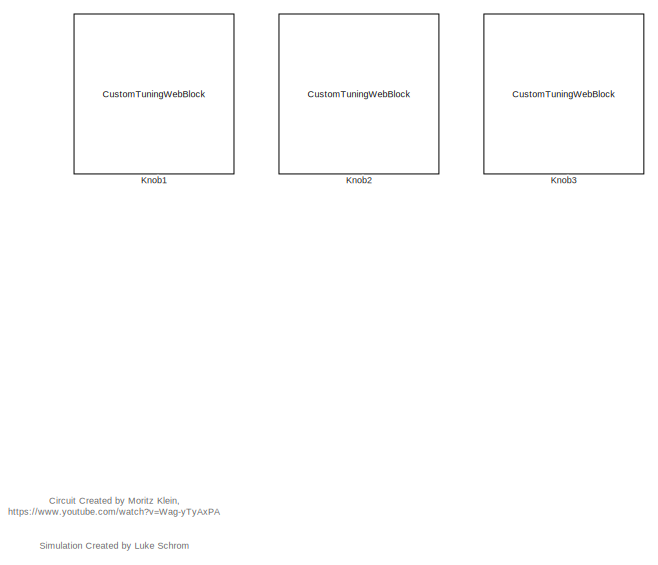
[diagram: root canvas - part 1/2, middle right region]
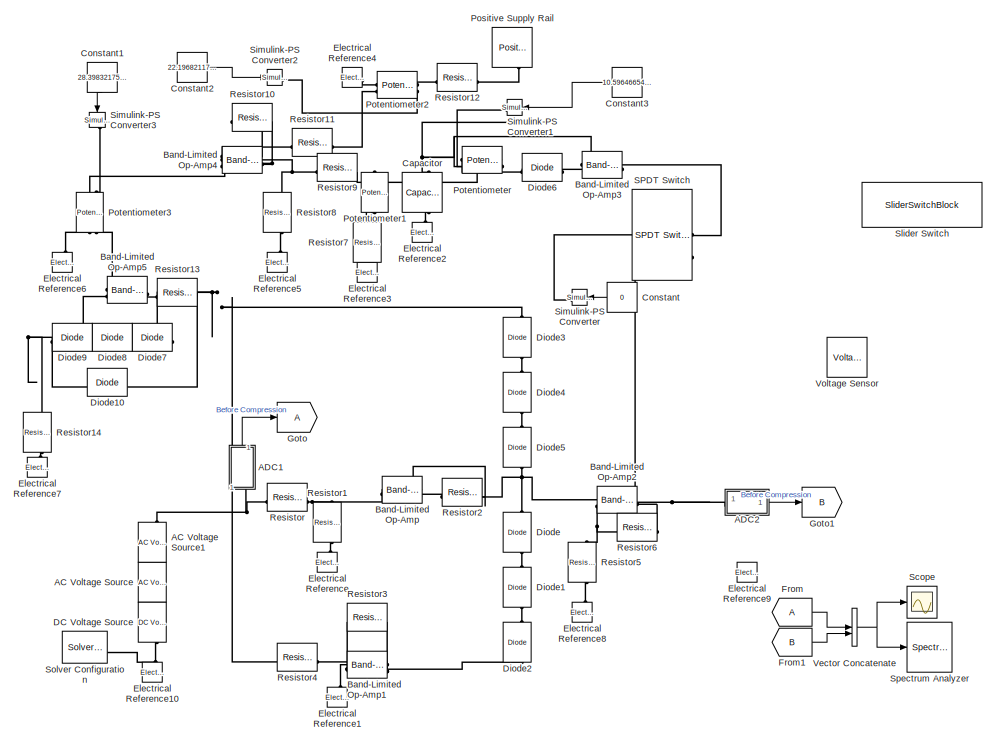
[diagram: root canvas - part 2/2, left side, full height]
MODEL slx_2bfb2316a08a
KIND model
CONFIG AbsTol = auto
CONFIG EnableMultiTasking = off
CONFIG FixedStep = auto
CONFIG MaxStep = auto
CONFIG MinStep = auto
CONFIG RelTol = 1e-3
CONFIG SampleTimeConstraint = Unconstrained
CONFIG SolverName = VariableStepAuto
CONFIG StartTime = 0.0
CONFIG StopTime = 10.0
BLOCK [Reference] AC Voltage Source  REF=fl_lib/Electrical/Electrical Sources/AC Voltage Source
  NameLocation = right
  SourceBlock = fl_lib/Electrical/Electrical Sources/AC Voltage Source
  SourceType = AC Voltage Source
BLOCK [Reference] AC Voltage Source1  REF=fl_lib/Electrical/Electrical Sources/AC Voltage Source
  NameLocation = right
  SourceBlock = fl_lib/Electrical/Electrical Sources/AC Voltage Source
  SourceType = AC Voltage Source
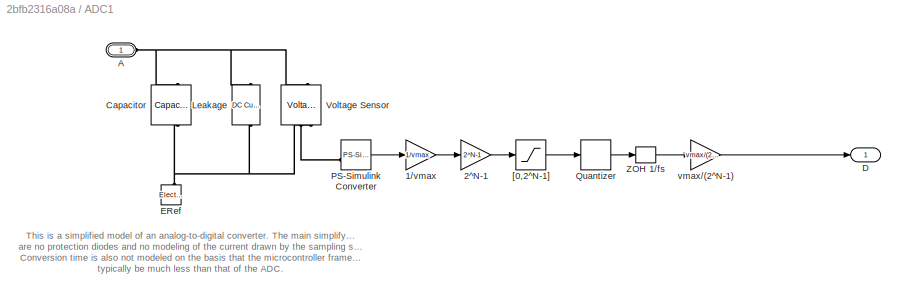
BLOCK [SubSystem] ADC1
  NameLocation = left
BLOCK [Gain] ADC1/1//vmax
  Gain = 1/vmax
BLOCK [Gain] ADC1/2^N-1
  Gain = 2^N-1
BLOCK [PMIOPort] ADC1/A
  Side = Left
BLOCK [Reference] ADC1/Capacitor  REF=fl_lib/Electrical/Electrical Elements/Capacitor
  NameLocation = left
  SourceBlock = fl_lib/Electrical/Electrical Elements/Capacitor
  SourceType = Capacitor
BLOCK [Outport] ADC1/D
  VectorParamsAs1DForOutWhenUnconnected = off
BLOCK [Reference] ADC1/ERef  REF=fl_lib/Electrical/Electrical Elements/Electrical Reference
  NameLocation = right
  SourceBlock = fl_lib/Electrical/Electrical Elements/Electrical Reference
  SourceType = Electrical Reference
BLOCK [Reference] ADC1/Leakage  REF=fl_lib/Electrical/Electrical Sources/DC Current Source
  NameLocation = left
  SourceBlock = fl_lib/Electrical/Electrical Sources/DC Current Source
  SourceType = DC Current Source
BLOCK [Reference] ADC1/PS-Simulink Converter  REF=nesl_utility/PS-Simulink
Converter
  SourceBlock = nesl_utility/PS-Simulink\nConverter
  SourceType = PS-Simulink\nConverter
BLOCK [Quantizer] ADC1/Quantizer
BLOCK [Reference] ADC1/Voltage Sensor  REF=fl_lib/Electrical/Electrical Sensors/Voltage Sensor
  NameLocation = right
  SourceBlock = fl_lib/Electrical/Electrical Sensors/Voltage Sensor
  SourceType = Voltage Sensor
BLOCK [ZeroOrderHold] ADC1/ZOH 1//fs
  SampleTime = 1/fs
BLOCK [Saturate] ADC1/[0,2^N-1]
  LowerLimit = 0
  UpperLimit = 2^N-1
BLOCK [Gain] ADC1/vmax//(2^N-1)
  Gain = vmax/(2^N-1)
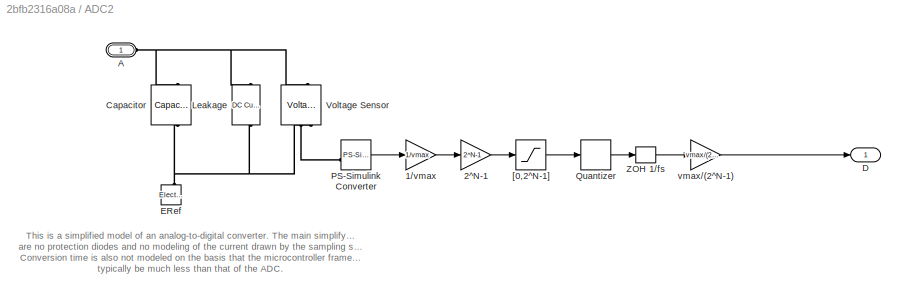
BLOCK [SubSystem] ADC2
  NameLocation = top
BLOCK [Gain] ADC2/1//vmax
  Gain = 1/vmax
BLOCK [Gain] ADC2/2^N-1
  Gain = 2^N-1
BLOCK [PMIOPort] ADC2/A
  Side = Left
BLOCK [Reference] ADC2/Capacitor  REF=fl_lib/Electrical/Electrical Elements/Capacitor
  NameLocation = left
  SourceBlock = fl_lib/Electrical/Electrical Elements/Capacitor
  SourceType = Capacitor
BLOCK [Outport] ADC2/D
  VectorParamsAs1DForOutWhenUnconnected = off
BLOCK [Reference] ADC2/ERef  REF=fl_lib/Electrical/Electrical Elements/Electrical Reference
  NameLocation = right
  SourceBlock = fl_lib/Electrical/Electrical Elements/Electrical Reference
  SourceType = Electrical Reference
BLOCK [Reference] ADC2/Leakage  REF=fl_lib/Electrical/Electrical Sources/DC Current Source
  NameLocation = left
  SourceBlock = fl_lib/Electrical/Electrical Sources/DC Current Source
  SourceType = DC Current Source
BLOCK [Reference] ADC2/PS-Simulink Converter  REF=nesl_utility/PS-Simulink
Converter
  SourceBlock = nesl_utility/PS-Simulink\nConverter
  SourceType = PS-Simulink\nConverter
BLOCK [Quantizer] ADC2/Quantizer
BLOCK [Reference] ADC2/Voltage Sensor  REF=fl_lib/Electrical/Electrical Sensors/Voltage Sensor
  NameLocation = right
  SourceBlock = fl_lib/Electrical/Electrical Sensors/Voltage Sensor
  SourceType = Voltage Sensor
BLOCK [ZeroOrderHold] ADC2/ZOH 1//fs
  SampleTime = 1/fs
BLOCK [Saturate] ADC2/[0,2^N-1]
  LowerLimit = 0
  UpperLimit = 2^N-1
BLOCK [Gain] ADC2/vmax//(2^N-1)
  Gain = vmax/(2^N-1)
BLOCK [Reference] Band-Limited Op-Amp  REF=ee_lib/Integrated Circuits/Band-Limited Op-Amp
  SourceBlock = ee_lib/Integrated Circuits/Band-Limited Op-Amp
  SourceType = Band-Limited Op-Amp
BLOCK [Reference] Band-Limited Op-Amp1  REF=ee_lib/Integrated Circuits/Band-Limited Op-Amp
  SourceBlock = ee_lib/Integrated Circuits/Band-Limited Op-Amp
  SourceType = Band-Limited Op-Amp
BLOCK [Reference] Band-Limited Op-Amp2  REF=ee_lib/Integrated Circuits/Band-Limited Op-Amp
  SourceBlock = ee_lib/Integrated Circuits/Band-Limited Op-Amp
  SourceType = Band-Limited Op-Amp
BLOCK [Reference] Band-Limited Op-Amp3  REF=ee_lib/Integrated Circuits/Band-Limited Op-Amp
  NameLocation = top
  SourceBlock = ee_lib/Integrated Circuits/Band-Limited Op-Amp
  SourceType = Band-Limited Op-Amp
BLOCK [Reference] Band-Limited Op-Amp4  REF=ee_lib/Integrated Circuits/Band-Limited Op-Amp
  NameLocation = top
  SourceBlock = ee_lib/Integrated Circuits/Band-Limited Op-Amp
  SourceType = Band-Limited Op-Amp
BLOCK [Reference] Band-Limited Op-Amp5  REF=ee_lib/Integrated Circuits/Band-Limited Op-Amp
  SourceBlock = ee_lib/Integrated Circuits/Band-Limited Op-Amp
  SourceType = Band-Limited Op-Amp
BLOCK [Reference] Capacitor  REF=ee_lib/Passive/Capacitor
  NameLocation = left
  SourceBlock = ee_lib/Passive/Capacitor
  SourceType = Capacitor
BLOCK [Constant] Constant
  NameLocation = top
  Value = 0
BLOCK [Constant] Constant1
  NameLocation = left
  Value = 28.39832175485527
BLOCK [Constant] Constant2
  Value = 22.19682117708798
BLOCK [Constant] Constant3
  NameLocation = top
  Value = 10.59646654295008
BLOCK [Reference] DC Voltage Source  REF=fl_lib/Electrical/Electrical Sources/DC Voltage Source
  NameLocation = right
  SourceBlock = fl_lib/Electrical/Electrical Sources/DC Voltage Source
  SourceType = DC Voltage Source
BLOCK [Reference] Diode  REF=ee_lib/Semiconductors &
Converters/Diode
  NameLocation = left
  SourceBlock = ee_lib/Semiconductors &\nConverters/Diode
  SourceType = Diode
BLOCK [Reference] Diode1  REF=ee_lib/Semiconductors &
Converters/Diode
  NameLocation = left
  SourceBlock = ee_lib/Semiconductors &\nConverters/Diode
  SourceType = Diode
BLOCK [Reference] Diode10  REF=ee_lib/Semiconductors &
Converters/Diode
  SourceBlock = ee_lib/Semiconductors &\nConverters/Diode
  SourceType = Diode
BLOCK [Reference] Diode2  REF=ee_lib/Semiconductors &
Converters/Diode
  NameLocation = left
  SourceBlock = ee_lib/Semiconductors &\nConverters/Diode
  SourceType = Diode
BLOCK [Reference] Diode3  REF=ee_lib/Semiconductors &
Converters/Diode
  NameLocation = left
  SourceBlock = ee_lib/Semiconductors &\nConverters/Diode
  SourceType = Diode
BLOCK [Reference] Diode4  REF=ee_lib/Semiconductors &
Converters/Diode
  NameLocation = left
  SourceBlock = ee_lib/Semiconductors &\nConverters/Diode
  SourceType = Diode
BLOCK [Reference] Diode5  REF=ee_lib/Semiconductors &
Converters/Diode
  NameLocation = left
  SourceBlock = ee_lib/Semiconductors &\nConverters/Diode
  SourceType = Diode
BLOCK [Reference] Diode6  REF=ee_lib/Semiconductors &
Converters/Diode
  NameLocation = top
  SourceBlock = ee_lib/Semiconductors &\nConverters/Diode
  SourceType = Diode
BLOCK [Reference] Diode7  REF=ee_lib/Semiconductors &
Converters/Diode
  NameLocation = top
  SourceBlock = ee_lib/Semiconductors &\nConverters/Diode
  SourceType = Diode
BLOCK [Reference] Diode8  REF=ee_lib/Semiconductors &
Converters/Diode
  NameLocation = top
  SourceBlock = ee_lib/Semiconductors &\nConverters/Diode
  SourceType = Diode
BLOCK [Reference] Diode9  REF=ee_lib/Semiconductors &
Converters/Diode
  NameLocation = top
  SourceBlock = ee_lib/Semiconductors &\nConverters/Diode
  SourceType = Diode
BLOCK [Reference] Electrical Reference  REF=fl_lib/Electrical/Electrical Elements/Electrical Reference
  LibrarySourceBlock = ee_lib/Connectors &\nReferences/Electrical Reference
  NameLocation = right
  SourceBlock = fl_lib/Electrical/Electrical Elements/Electrical Reference
  SourceType = Electrical Reference
BLOCK [Reference] Electrical Reference1  REF=fl_lib/Electrical/Electrical Elements/Electrical Reference
  LibrarySourceBlock = ee_lib/Connectors &\nReferences/Electrical Reference
  NameLocation = right
  SourceBlock = fl_lib/Electrical/Electrical Elements/Electrical Reference
  SourceType = Electrical Reference
BLOCK [Reference] Electrical Reference10  REF=fl_lib/Electrical/Electrical Elements/Electrical Reference
  LibrarySourceBlock = ee_lib/Connectors &\nReferences/Electrical Reference
  NameLocation = right
  SourceBlock = fl_lib/Electrical/Electrical Elements/Electrical Reference
  SourceType = Electrical Reference
BLOCK [Reference] Electrical Reference2  REF=fl_lib/Electrical/Electrical Elements/Electrical Reference
  LibrarySourceBlock = ee_lib/Connectors &\nReferences/Electrical Reference
  NameLocation = right
  SourceBlock = fl_lib/Electrical/Electrical Elements/Electrical Reference
  SourceType = Electrical Reference
BLOCK [Reference] Electrical Reference3  REF=fl_lib/Electrical/Electrical Elements/Electrical Reference
  LibrarySourceBlock = ee_lib/Connectors &\nReferences/Electrical Reference
  NameLocation = right
  SourceBlock = fl_lib/Electrical/Electrical Elements/Electrical Reference
  SourceType = Electrical Reference
BLOCK [Reference] Electrical Reference4  REF=fl_lib/Electrical/Electrical Elements/Electrical Reference
  LibrarySourceBlock = ee_lib/Connectors &\nReferences/Electrical Reference
  SourceBlock = fl_lib/Electrical/Electrical Elements/Electrical Reference
  SourceType = Electrical Reference
BLOCK [Reference] Electrical Reference5  REF=fl_lib/Electrical/Electrical Elements/Electrical Reference
  LibrarySourceBlock = ee_lib/Connectors &\nReferences/Electrical Reference
  NameLocation = right
  SourceBlock = fl_lib/Electrical/Electrical Elements/Electrical Reference
  SourceType = Electrical Reference
BLOCK [Reference] Electrical Reference6  REF=fl_lib/Electrical/Electrical Elements/Electrical Reference
  LibrarySourceBlock = ee_lib/Connectors &\nReferences/Electrical Reference
  NameLocation = right
  SourceBlock = fl_lib/Electrical/Electrical Elements/Electrical Reference
  SourceType = Electrical Reference
BLOCK [Reference] Electrical Reference7  REF=fl_lib/Electrical/Electrical Elements/Electrical Reference
  LibrarySourceBlock = ee_lib/Connectors &\nReferences/Electrical Reference
  NameLocation = right
  SourceBlock = fl_lib/Electrical/Electrical Elements/Electrical Reference
  SourceType = Electrical Reference
BLOCK [Reference] Electrical Reference8  REF=fl_lib/Electrical/Electrical Elements/Electrical Reference
  LibrarySourceBlock = ee_lib/Connectors &\nReferences/Electrical Reference
  NameLocation = right
  SourceBlock = fl_lib/Electrical/Electrical Elements/Electrical Reference
  SourceType = Electrical Reference
BLOCK [Reference] Electrical Reference9  REF=fl_lib/Electrical/Electrical Elements/Electrical Reference
  LibrarySourceBlock = ee_lib/Connectors &\nReferences/Electrical Reference
  NameLocation = right
  SourceBlock = fl_lib/Electrical/Electrical Elements/Electrical Reference
  SourceType = Electrical Reference
BLOCK [From] From
BLOCK [From] From1
  GotoTag = B
BLOCK [Goto] Goto
BLOCK [Goto] Goto1
  GotoTag = B
BLOCK [CustomTuningWebBlock] Knob1
  Configuration = {"components":[{"name":"CircularScaleComponent","settings":{"bounds":{"max":100,"min":0,"tickInterval":"auto"},"direction":"cw","flipLimits":0,"innerRadius":0.6636618227670849,"internalTickHeightScaleFactor":1,"labelColor":[255,255,200],"labelFont":{"font":"Arial","fontSize":12},"labelRadius":0.79,"labelTransparency":1,"minorTickHeightScaleFactor":0.2,"needleImage":{"size":[150,150],"src":"data:im...<+43670ch>  <repeated x3 — deduplicated; at blocks: Knob1, Knob2, Knob3>
  LabelPosition = Hide
  ShowInitialText = on
BLOCK [CustomTuningWebBlock] Knob2
  LabelPosition = Hide
  ShowInitialText = on
BLOCK [CustomTuningWebBlock] Knob3
  LabelPosition = Hide
  ShowInitialText = on
BLOCK [Reference] Positive Supply Rail  REF=ee_lib/Sources/Positive Supply Rail
  NameLocation = right
  SourceBlock = ee_lib/Sources/Positive Supply Rail
  SourceType = Positive Supply Rail
BLOCK [Reference] Potentiometer  REF=ee_lib/Passive/Potentiometer
  SourceBlock = ee_lib/Passive/Potentiometer
  SourceType = Potentiometer
BLOCK [Reference] Potentiometer1  REF=ee_lib/Passive/Potentiometer
  NameLocation = right
  SourceBlock = ee_lib/Passive/Potentiometer
  SourceType = Potentiometer
BLOCK [Reference] Potentiometer2  REF=ee_lib/Passive/Potentiometer
  SourceBlock = ee_lib/Passive/Potentiometer
  SourceType = Potentiometer
BLOCK [Reference] Potentiometer3  REF=ee_lib/Passive/Potentiometer
  NameLocation = right
  SourceBlock = ee_lib/Passive/Potentiometer
  SourceType = Potentiometer
BLOCK [Reference] Resistor  REF=ee_lib/Passive/Resistor
  SourceBlock = ee_lib/Passive/Resistor
  SourceType = Resistor
BLOCK [Reference] Resistor1  REF=ee_lib/Passive/Resistor
  NameLocation = left
  SourceBlock = ee_lib/Passive/Resistor
  SourceType = Resistor
BLOCK [Reference] Resistor10  REF=fl_lib/Electrical/Electrical Elements/Resistor
  SourceBlock = fl_lib/Electrical/Electrical Elements/Resistor
  SourceType = Resistor
BLOCK [Reference] Resistor11  REF=ee_lib/Passive/Resistor
  SourceBlock = ee_lib/Passive/Resistor
  SourceType = Resistor
BLOCK [Reference] Resistor12  REF=ee_lib/Passive/Resistor
  SourceBlock = ee_lib/Passive/Resistor
  SourceType = Resistor
BLOCK [Reference] Resistor13  REF=ee_lib/Passive/Resistor
  SourceBlock = ee_lib/Passive/Resistor
  SourceType = Resistor
BLOCK [Reference] Resistor14  REF=ee_lib/Passive/Resistor
  NameLocation = left
  SourceBlock = ee_lib/Passive/Resistor
  SourceType = Resistor
BLOCK [Reference] Resistor2  REF=ee_lib/Passive/Resistor
  SourceBlock = ee_lib/Passive/Resistor
  SourceType = Resistor
BLOCK [Reference] Resistor3  REF=ee_lib/Passive/Resistor
  SourceBlock = ee_lib/Passive/Resistor
  SourceType = Resistor
BLOCK [Reference] Resistor4  REF=ee_lib/Passive/Resistor
  SourceBlock = ee_lib/Passive/Resistor
  SourceType = Resistor
BLOCK [Reference] Resistor5  REF=ee_lib/Passive/Resistor
  NameLocation = left
  SourceBlock = ee_lib/Passive/Resistor
  SourceType = Resistor
BLOCK [Reference] Resistor6  REF=ee_lib/Passive/Resistor
  SourceBlock = ee_lib/Passive/Resistor
  SourceType = Resistor
BLOCK [Reference] Resistor7  REF=ee_lib/Passive/Resistor
  NameLocation = left
  SourceBlock = ee_lib/Passive/Resistor
  SourceType = Resistor
BLOCK [Reference] Resistor8  REF=ee_lib/Passive/Resistor
  NameLocation = left
  SourceBlock = ee_lib/Passive/Resistor
  SourceType = Resistor
BLOCK [Reference] Resistor9  REF=ee_lib/Passive/Resistor
  SourceBlock = ee_lib/Passive/Resistor
  SourceType = Resistor
BLOCK [Reference] SPDT Switch  REF=ee_lib/Switches & Breakers/SPDT Switch
  NameLocation = top
  SourceBlock = ee_lib/Switches & Breakers/SPDT Switch
  SourceType = SPDT Switch
BLOCK [Scope] Scope
  Floating = off
  NumInputPorts = 1
  ScopeSpecificationString = Simulink.scopes.TimeScopeBlockCfg('CurrentConfiguration', extmgr.ConfigurationSet(extmgr.Configuration('Core','General UI',true),extmgr.Configuration('Core','Source UI',true),extmgr.Configuration('Sources','WiredSimulink',true),extmgr.Configuration('Visuals','Time Domain',true,'SerializedDisplays',{struct('MinYLimReal','-10.00000','MaxYLimReal','10.00000','YLabelReal','','MinYLimMag','0.00000','Ma...<+1472ch>
BLOCK [Reference] Simulink-PS Converter  REF=nesl_utility/Simulink-PS
Converter
  NameLocation = top
  SourceBlock = nesl_utility/Simulink-PS\nConverter
  SourceType = Simulink-PS\nConverter
BLOCK [Reference] Simulink-PS Converter1  REF=nesl_utility/Simulink-PS
Converter
  NameLocation = top
  SourceBlock = nesl_utility/Simulink-PS\nConverter
  SourceType = Simulink-PS\nConverter
BLOCK [Reference] Simulink-PS Converter2  REF=nesl_utility/Simulink-PS
Converter
  SourceBlock = nesl_utility/Simulink-PS\nConverter
  SourceType = Simulink-PS\nConverter
BLOCK [Reference] Simulink-PS Converter3  REF=nesl_utility/Simulink-PS
Converter
  NameLocation = left
  SourceBlock = nesl_utility/Simulink-PS\nConverter
  SourceType = Simulink-PS\nConverter
BLOCK [SliderSwitchBlock] Slider Switch
BLOCK [Reference] Solver Configuration  REF=nesl_utility/Solver
Configuration
  SourceBlock = nesl_utility/Solver\nConfiguration
  SourceType = Solver\nConfiguration
BLOCK [SpectrumAnalyzer] Spectrum Analyzer
  FrequencyScale = Log
  FrequencySpan = Start and stop frequencies
  GraphicalSettings = {"GraphicalSettings":{"Style":{"BackgroundColor":[0.12941176470588237,0.12941176470588237,0.12941176470588237],"AxesColor":[0.07058823529411765,0.07058823529411765,0.07058823529411765],"LabelsColor":[0.8509803921568627,0.8509803921568627,0.8509803921568627],"PreserveColors":false,"Visible":[true],"LineStyle":["-"],"LineColor":[[1,1,0.06666666666666667]],"LineWidth":[1.5],"Marker":["none"],"FontSiz...<+929ch>
  PlotAsTwoSidedSpectrum = off
  SampleRate = 44.1e3
  SampleRateSource = Property
  ScopeFrameLocation = window
  StartFrequency = 20
  StopFrequency = 20e3
  Visible = on
  WasSavedAsWebScope = on
  WindowPosition = [1.000000,41.000000,1920.000000,1017.000000,]
  YLimits = [-78.7687969,39.09478957]
BLOCK [Concatenate] Vector Concatenate
BLOCK [Reference] Voltage Sensor  REF=fl_lib/Electrical/Electrical Sensors/Voltage Sensor
  NameLocation = right
  SourceBlock = fl_lib/Electrical/Electrical Sensors/Voltage Sensor
  SourceType = Voltage Sensor
ANNOTATION (root): Circuit Created by M oritz Klein, https://www.youtube.com/watch?v=Wag-yTyAxPA
ANNOTATION (root): Simulation Created by Luke Schrom
ANNOTATION ADC1: This is a simplified model of an analog-to-digital converter. The main simplifying assumptions are no protection diodes and no modeling of the current drawn by the sampling switch. Conversion time is also not modeled on the basis that the microcontroller frame rate will typically be much less than that of the ADC.
ANNOTATION ADC2: This is a simplified model of an analog-to-digital converter. The main simplifying assumptions are no protection diodes and no modeling of the current drawn by the sampling switch. Conversion time is also not modeled on the basis that the microcontroller frame rate will typically be much less than that of the ADC.
LINE ADC1/1//vmax:1 -> ADC1/2^N-1:1
LINE ADC1/2^N-1:1 -> ADC1/[0,2^N-1]:1
LINE ADC1/PS-Simulink Converter:1 -> ADC1/1//vmax:1
LINE ADC1/Quantizer:1 -> ADC1/ZOH 1//fs:1
LINE ADC1/ZOH 1//fs:1 -> ADC1/vmax//(2^N-1):1
LINE ADC1/[0,2^N-1]:1 -> ADC1/Quantizer:1
LINE ADC1/vmax//(2^N-1):1 -> ADC1/D:1
LINE ADC1:1 -> Goto:1
LINE ADC2/1//vmax:1 -> ADC2/2^N-1:1
LINE ADC2/2^N-1:1 -> ADC2/[0,2^N-1]:1
LINE ADC2/PS-Simulink Converter:1 -> ADC2/1//vmax:1
LINE ADC2/Quantizer:1 -> ADC2/ZOH 1//fs:1
LINE ADC2/ZOH 1//fs:1 -> ADC2/vmax//(2^N-1):1
LINE ADC2/[0,2^N-1]:1 -> ADC2/Quantizer:1
LINE ADC2/vmax//(2^N-1):1 -> ADC2/D:1
LINE ADC2:1 -> Goto1:1
LINE Constant1:1 -> Simulink-PS Converter3:1
LINE Constant2:1 -> Simulink-PS Converter2:1
LINE Constant3:1 -> Simulink-PS Converter1:1
LINE Constant:1 -> Simulink-PS Converter:1
LINE From1:1 -> Vector Concatenate:2
LINE From:1 -> Vector Concatenate:1
NET Vector Concatenate:1 -> Scope:1, Spectrum Analyzer:1
PNET net1: AC Voltage Source1:LConn1 -- ADC1:LConn1 -- Resistor:LConn1
PLINE AC Voltage Source1:RConn1 -- AC Voltage Source:LConn1
PLINE AC Voltage Source:RConn1 -- DC Voltage Source:LConn1
PNET net2: ADC1/A:RConn1 -- ADC1/Capacitor:LConn1 -- ADC1/Leakage:RConn1 -- ADC1/Voltage Sensor:LConn1
PNET net3: ADC1/Capacitor:RConn1 -- ADC1/ERef:LConn1 -- ADC1/Leakage:LConn1 -- ADC1/Voltage Sensor:RConn2
PLINE ADC1/PS-Simulink Converter:LConn1 -- ADC1/Voltage Sensor:RConn1
PNET net4: ADC2/A:RConn1 -- ADC2/Capacitor:LConn1 -- ADC2/Leakage:RConn1 -- ADC2/Voltage Sensor:LConn1
PNET net5: ADC2/Capacitor:RConn1 -- ADC2/ERef:LConn1 -- ADC2/Leakage:LConn1 -- ADC2/Voltage Sensor:RConn2
PLINE ADC2/PS-Simulink Converter:LConn1 -- ADC2/Voltage Sensor:RConn1
PNET net6: ADC2:LConn1 -- Band-Limited Op-Amp2:RConn1 -- Resistor6:RConn1 -- SPDT Switch:RConn1
PLINE Band-Limited Op-Amp1:LConn1 -- Electrical Reference1:LConn1
PNET net7: Band-Limited Op-Amp1:LConn2 -- Resistor3:LConn1 -- Resistor4:RConn1
PNET net8: Band-Limited Op-Amp1:RConn1 -- Diode2:RConn1 -- Resistor3:RConn1
PNET net9: Band-Limited Op-Amp2:LConn1 -- Diode5:RConn1 -- Diode:LConn1 -- Resistor2:RConn1
PNET net10: Band-Limited Op-Amp2:LConn2 -- Resistor5:LConn1 -- Resistor6:LConn1
PLINE Band-Limited Op-Amp3:LConn1 -- SPDT Switch:LConn2
PNET net11: Band-Limited Op-Amp3:LConn2 -- Capacitor:LConn1 -- Potentiometer1:RConn1 -- Potentiometer:LConn2 -- Potentiometer:RConn1 -- Resistor9:RConn1
PLINE Band-Limited Op-Amp3:RConn1 -- Diode6:LConn1
PNET net12: Band-Limited Op-Amp4:LConn1 -- Resistor8:LConn1 -- Resistor9:LConn1
PNET net13: Band-Limited Op-Amp4:LConn2 -- Resistor10:RConn1 -- Resistor11:LConn1
PNET net14: Band-Limited Op-Amp4:RConn1 -- Potentiometer3:RConn1 -- Resistor10:LConn1
PLINE Band-Limited Op-Amp5:LConn1 -- Potentiometer3:LConn2
PNET net15: Band-Limited Op-Amp5:LConn2 -- Diode10:LConn1 -- Diode9:RConn1 -- Resistor14:LConn1
PLINE Band-Limited Op-Amp5:RConn1 -- Resistor13:LConn1
PNET net16: Band-Limited Op-Amp:LConn1 -- Resistor1:LConn1 -- Resistor:RConn1
PNET net17: Band-Limited Op-Amp:LConn2 -- Band-Limited Op-Amp:RConn1 -- Resistor2:LConn1
PLINE Capacitor:RConn1 -- Electrical Reference2:LConn1
PNET net18: DC Voltage Source:RConn1 -- Electrical Reference10:LConn1 -- Solver Configuration:RConn1
PNET net19: Diode10:RConn1 -- Diode3:LConn1 -- Diode7:LConn1 -- Resistor13:RConn1 -- Resistor4:LConn1
PLINE Diode1:LConn1 -- Diode:RConn1
PLINE Diode1:RConn1 -- Diode2:LConn1
PLINE Diode3:RConn1 -- Diode4:LConn1
PLINE Diode4:RConn1 -- Diode5:LConn1
PLINE Diode6:RConn1 -- Potentiometer:LConn1
PLINE Diode7:RConn1 -- Diode8:LConn1
PLINE Diode8:RConn1 -- Diode9:LConn1
PLINE Electrical Reference3:LConn1 -- Resistor7:RConn1
PLINE Electrical Reference4:LConn1 -- Potentiometer2:LConn1
PLINE Electrical Reference5:LConn1 -- Resistor8:RConn1
PLINE Electrical Reference6:LConn1 -- Potentiometer3:LConn1
PLINE Electrical Reference7:LConn1 -- Resistor14:RConn1
PLINE Electrical Reference8:LConn1 -- Resistor5:RConn1
PLINE Electrical Reference:LConn1 -- Resistor1:RConn1
PLINE Positive Supply Rail:RConn1 -- Resistor12:RConn1
PNET net20: Potentiometer1:LConn1 -- Potentiometer1:LConn2 -- Resistor7:LConn1
PLINE Potentiometer2:LConn2 -- Resistor11:RConn1
PLINE Potentiometer2:RConn1 -- Resistor12:LConn1
PLINE Potentiometer2:RConn2 -- Simulink-PS Converter2:RConn1
PLINE Potentiometer3:RConn2 -- Simulink-PS Converter3:RConn1
PLINE Potentiometer:RConn2 -- Simulink-PS Converter1:RConn1
PLINE SPDT Switch:LConn1 -- Simulink-PS Converter:RConn1
note: NET lines group one-source signal fan-out (src -> all destinations, sorted); 1:1 wires keep LINE; PNET lines group multi-terminal physical nets as a canonical sorted terminal list (undirected conserving connections); 2-terminal nets keep the pairwise PLINE form
